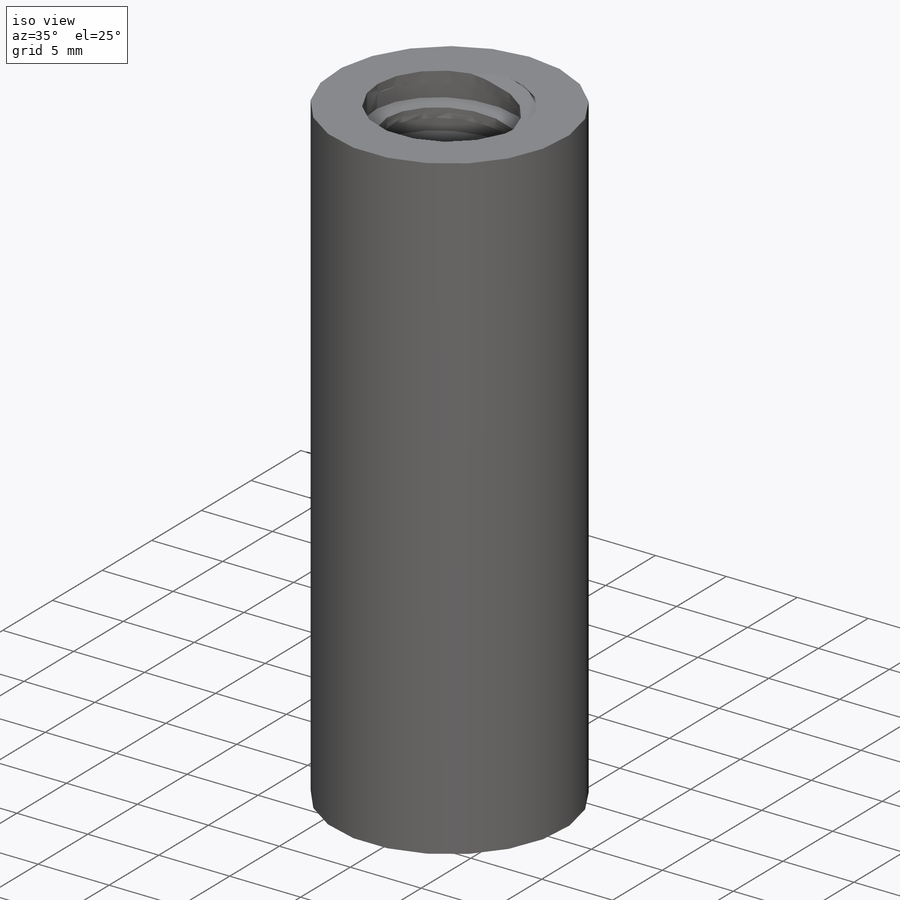
[diagram: iso view]
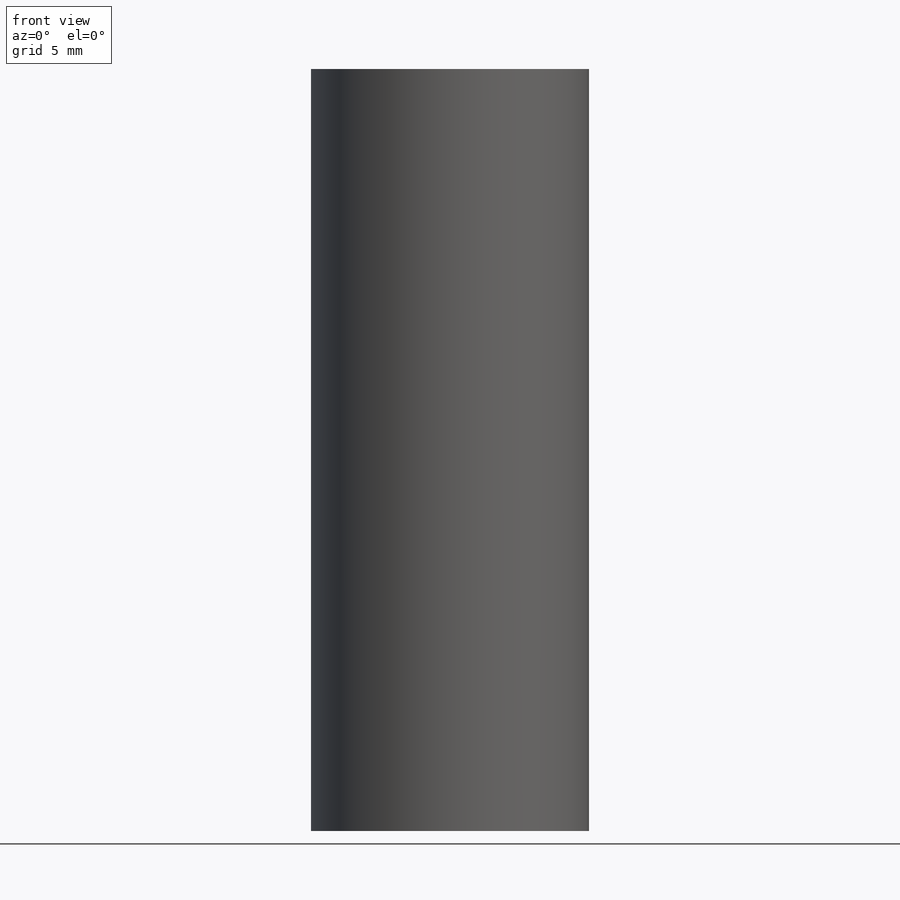
[diagram: front view]
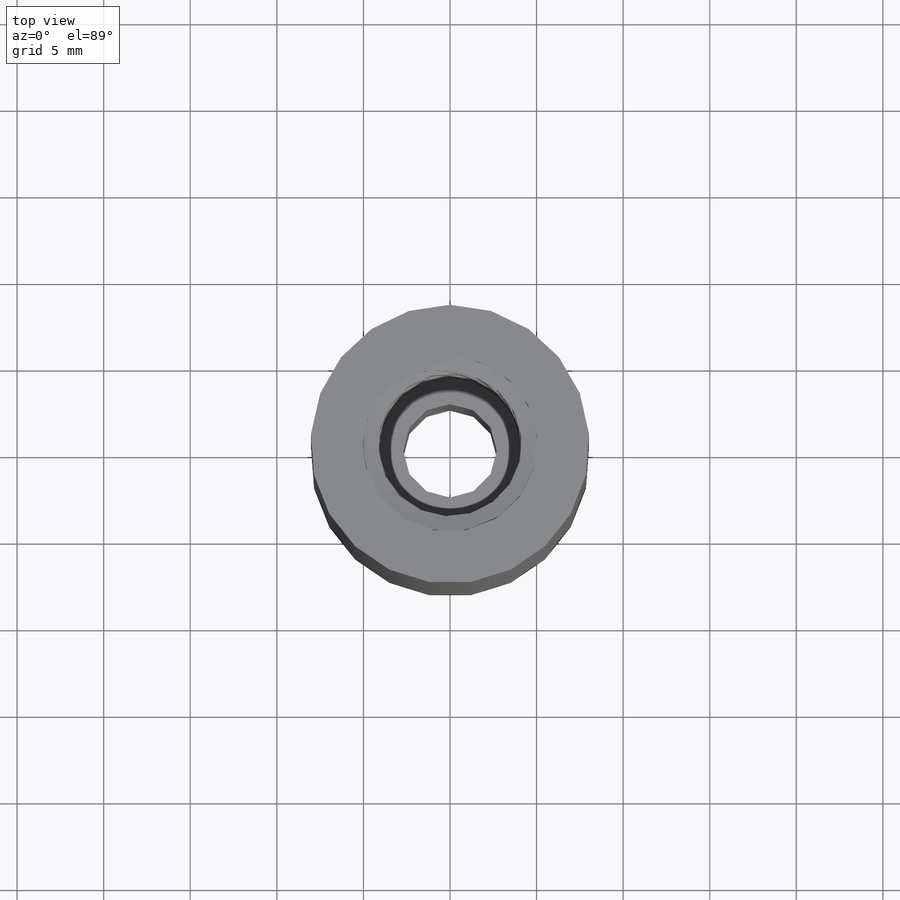
[diagram: top view]
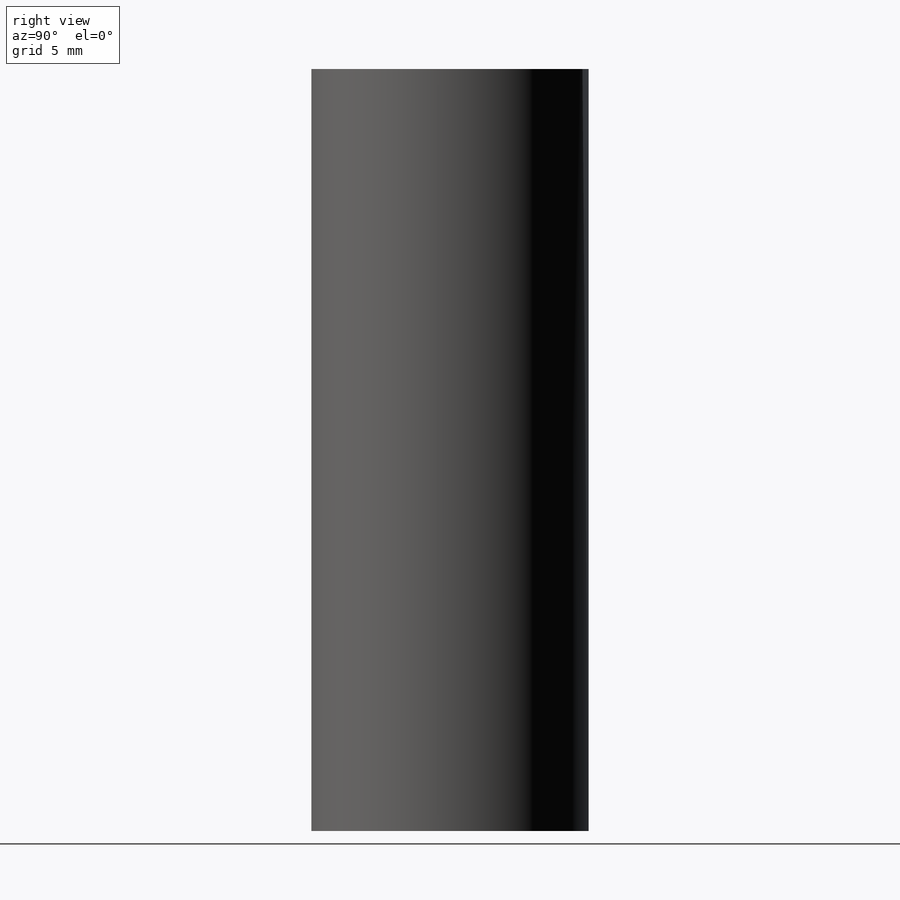
[diagram: right view]
SOLIDWORKS PART (.sldprt)
format: sldprt  version: not decoded by parser v0  size: 777,216 bytes
history: native  units: mm
features: sketch x5, cut_extrude x2, material x1, revolve x1, helix x1, plane x1, sweep x1 (+13 scaffold rows collapsed)
feature tree (25):
  scaffold x13  (default folders/planes/origin — collapsed)
  material  "Material <not specified>"
  sketch  "Sketch1"  dims[D1=2.7mm D2=5.05mm D3=3.0mm D4=22.0mm D5=22.0mm]
  revolve  "Revolve1"  Angle=360deg
  sketch  "Sketch2"
  helix  "Helix/Spiral1"  Pitch=29.633333mm
  plane  "Plane1"
  sketch  "Sketch3"  dims[c1.D1=0.9mm c1.D2=0.5mm c1.D3=0.2mm c1.D4=0.058mm c2.D3=0.5mm c3.D3=119.0deg c3.D2=~1.029019mm c4.D2=119.0deg c4.D3=0.9mm c5.D2=0.9mm c6.D2=29.0deg]
  sweep  "Sweep1"
  sketch  "Sketch4"  dims[D1=0.0mm]
  cut_extrude  "Cut-Extrude2"  Depth=1mm
  sketch  "Sketch5"
  cut_extrude  "Cut-Extrude3"  Depth=2mm
decode coverage: 7 of 10 modeling features carry decoded parameters
note: ~ marks probable driven/reference dimensions
note: suppression state not decoded; provenance and decode notes live in map.json
